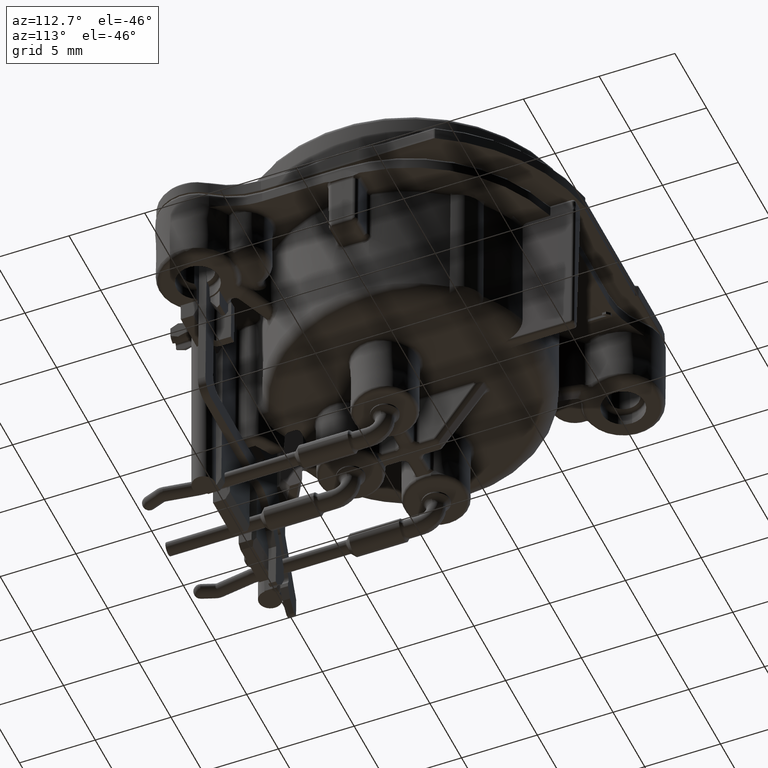
[diagram: clean part render]
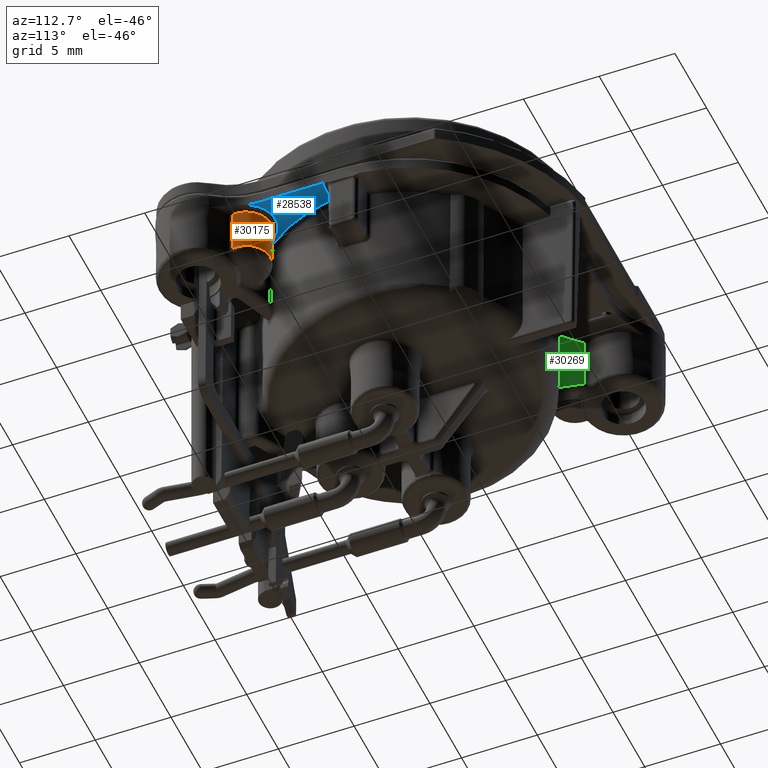
[diagram: same view with three faces highlighted in distinct colors, each labeled with its STEP entity id]
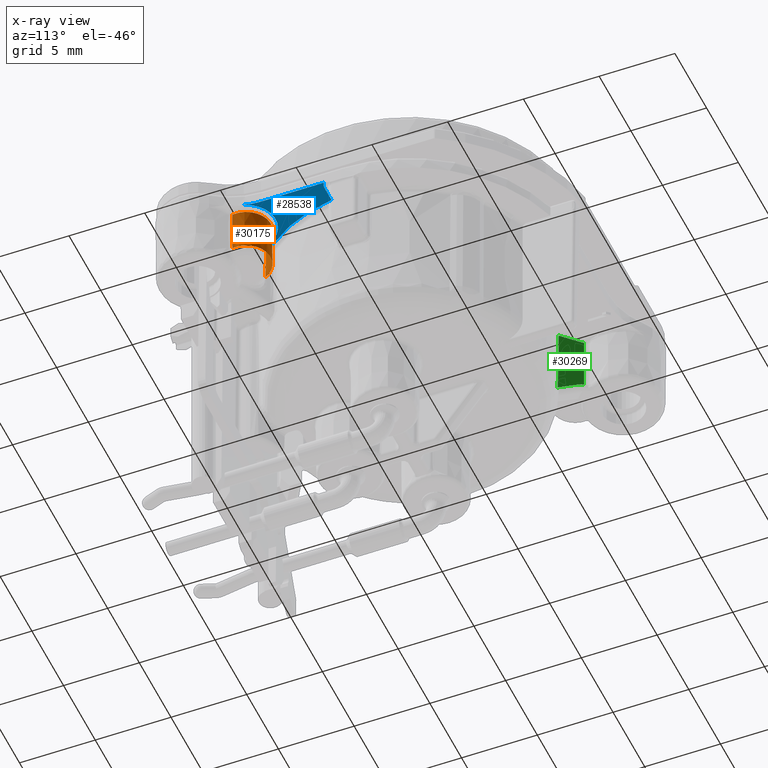
[diagram: x-ray of the same camera — body ghosted, the three highlighted faces saturated]
A machine part, auxiliary view with three faces highlighted in distinct colors.
The next image is the same camera in x-ray (body ghosted, the three faces saturated) — at least one of them is partly hidden behind the body in this view.
Their STEP definitions:

[orange] entity #30175 — the highlighted conical surface has half-angle 0.5 deg.
#4941=CARTESIAN_POINT('',(9.2E0,-7.E0,-1.297382058457E0));
#4942=DIRECTION('',(0.E0,0.E0,1.E0));
#4943=DIRECTION('',(9.902629051405E-1,-1.392098369464E-1,0.E0));
#4944=AXIS2_PLACEMENT_3D('',#4941,#4942,#4943);
#4946=CARTESIAN_POINT('',(7.721556796327E0,-6.307937083825E0,
-1.297382039366E0));
#4947=CARTESIAN_POINT('',(7.722603298882E0,-6.311950488734E0,
-1.600961282642E0));
#4948=CARTESIAN_POINT('',(7.724757557169E0,-6.320157020637E0,
-2.220952225498E0));
#4949=CARTESIAN_POINT('',(7.728102845009E0,-6.332746487465E0,
-3.169781385959E0));
#4950=CARTESIAN_POINT('',(7.730565044612E0,-6.341855013862E0,
-3.854204871482E0));
#4951=CARTESIAN_POINT('',(7.731839321282E0,-6.346544091006E0,
-4.206092356122E0));
#4953=CARTESIAN_POINT('',(9.2E0,-7.E0,-4.206108574849E0));
#4954=DIRECTION('',(0.E0,0.E0,-1.E0));
#4955=DIRECTION('',(-9.135943965522E-1,4.066267066836E-1,0.E0));
#4956=AXIS2_PLACEMENT_3D('',#4953,#4954,#4955);
#4958=CARTESIAN_POINT('',(1.081650990555E1,-7.227246807480E0,
-1.297382039347E0));
#4959=CARTESIAN_POINT('',(1.081364919131E1,-7.228527649517E0,
-1.601563728792E0));
#4960=CARTESIAN_POINT('',(1.080780529090E1,-7.231140372534E0,
-2.222359276565E0));
#4961=CARTESIAN_POINT('',(1.079885918444E1,-7.235130735333E0,
-3.171306264733E0));
#4962=CARTESIAN_POINT('',(1.079239583267E1,-7.238001083522E0,
-3.854858963895E0));
#4963=CARTESIAN_POINT('',(1.078907370298E1,-7.239475579124E0,
-4.206108541916E0));
#8927=CARTESIAN_POINT('',(7.731839321282E0,-6.346544091006E0,
-4.206092356122E0));
#8958=CARTESIAN_POINT('',(1.078907370298E1,-7.239475579124E0,
-4.206108541916E0));
#21730=CARTESIAN_POINT('',(1.081650990584E1,-7.227246804103E0,
-1.297382058457E0));
#21731=CARTESIAN_POINT('',(7.721556797725E0,-6.307937081397E0,
-1.297382058457E0));
#21732=VERTEX_POINT('',#21730);
#21733=VERTEX_POINT('',#21731);
#21964=VERTEX_POINT('',#8927);
#21976=VERTEX_POINT('',#8958);
#30161=CARTESIAN_POINT('',(9.2E0,-7.E0,-2.751746851800E0));
#30162=DIRECTION('',(0.E0,0.E0,1.E0));
#30163=DIRECTION('',(1.E0,0.E0,0.E0));
#30164=AXIS2_PLACEMENT_3D('',#30161,#30162,#30163);
#30165=CONICAL_SURFACE('',#30164,1.619712736821E0,5.E-1);
#30166=ORIENTED_EDGE('',*,*,#30151,.T.);
#30168=ORIENTED_EDGE('',*,*,#30167,.T.);
#30170=ORIENTED_EDGE('',*,*,#30169,.T.);
#30172=ORIENTED_EDGE('',*,*,#30171,.F.);
#30173=EDGE_LOOP('',(#30166,#30168,#30170,#30172));
#30174=FACE_OUTER_BOUND('',#30173,.F.);
#30175=ADVANCED_FACE('',(#30174),#30165,.T.);
#4945=CIRCLE('',#4944,1.632404786092E0);
#4952=B_SPLINE_CURVE_WITH_KNOTS('',3,(#4946,#4947,#4948,#4949,#4950,#4951),
.UNSPECIFIED.,.F.,.F.,(4,1,1,4),(0.E0,3.333333333333E-1,6.666666666667E-1,1.E0),
.UNSPECIFIED.);
#4957=CIRCLE('',#4956,1.607020714344E0);
#4964=B_SPLINE_CURVE_WITH_KNOTS('',3,(#4958,#4959,#4960,#4961,#4962,#4963),
.UNSPECIFIED.,.F.,.F.,(4,1,1,4),(0.E0,3.333333333333E-1,6.666666666667E-1,1.E0),
.UNSPECIFIED.);
#30151=EDGE_CURVE('',#21732,#21733,#4945,.T.);
#30167=EDGE_CURVE('',#21733,#21964,#4952,.T.);
#30169=EDGE_CURVE('',#21964,#21976,#4957,.T.);
#30171=EDGE_CURVE('',#21732,#21976,#4964,.T.);

[blue] entity #28538 — the highlighted planar face has unit normal (0, 0, -1).
#3322=CARTESIAN_POINT('',(9.2E0,-7.E0,-1.E0));
#3323=DIRECTION('',(0.E0,0.E0,1.E0));
#3324=DIRECTION('',(9.519259096566E-1,3.063283573626E-1,0.E0));
#3325=AXIS2_PLACEMENT_3D('',#3322,#3323,#3324);
#3327=CARTESIAN_POINT('',(1.59E1,-5.235238484124E0,-1.E0));
#3328=DIRECTION('',(0.E0,0.E0,1.E0));
#3329=DIRECTION('',(-1.E0,0.E0,0.E0));
#3330=AXIS2_PLACEMENT_3D('',#3327,#3328,#3329);
#3332=DIRECTION('',(6.983708814763E-6,-9.999999999756E-1,3.163963063708E-7));
#3333=VECTOR('',#3332,4.073512020291E0);
#3334=CARTESIAN_POINT('',(1.089997155178E1,-1.161726463933E0,
-1.000001288844E0));
#3335=LINE('',#3334,#3333);
#3336=CARTESIAN_POINT('',(1.052000000059E1,-1.297393363152E0,
-1.000001544859E0));
#3337=CARTESIAN_POINT('',(1.056671540122E1,-1.297408715291E0,
-9.999925854064E-1));
#3338=CARTESIAN_POINT('',(1.065720045394E1,-1.286849882723E0,
-1.000003043109E0));
#3339=CARTESIAN_POINT('',(1.078780646390E1,-1.240070886228E0,
-1.000000471008E0));
#3340=CARTESIAN_POINT('',(1.086403904062E1,-1.191128362822E0,
-9.999968722428E-1));
#3341=CARTESIAN_POINT('',(1.089997155178E1,-1.161726463933E0,
-1.000001288844E0));
#3343=DIRECTION('',(9.999999999991E-1,2.285176333701E-11,-1.334353007812E-6));
#3344=VECTOR('',#3343,1.157759089802E0);
#3345=CARTESIAN_POINT('',(9.362240910792E0,-1.297393363178E0,-1.E0));
#3346=LINE('',#3345,#3344);
#3347=CARTESIAN_POINT('',(0.E0,0.E0,-1.000000000004E0));
#3348=DIRECTION('',(0.E0,0.E0,1.E0));
#3349=DIRECTION('',(7.770771924413E-1,-6.294053042258E-1,0.E0));
#3350=AXIS2_PLACEMENT_3D('',#3347,#3348,#3349);
#3352=CARTESIAN_POINT('',(7.351705535863E0,-6.082599670873E0,
-1.000000000012E0));
#3353=CARTESIAN_POINT('',(7.344623420706E0,-6.075522837312E0,
-1.000000000012E0));
#3354=CARTESIAN_POINT('',(7.333138117949E0,-6.059988567502E0,
-9.999999999946E-1));
#3355=CARTESIAN_POINT('',(7.322951618224E0,-6.031904571272E0,
-1.000000000001E0));
#3356=CARTESIAN_POINT('',(7.321407958961E0,-6.002338475986E0,
-1.000000000002E0));
#3357=CARTESIAN_POINT('',(7.328619683468E0,-5.973340230984E0,
-9.999999999929E-1));
#3358=CARTESIAN_POINT('',(7.338414601059E0,-5.956719757381E0,
-1.000000000016E0));
#3359=CARTESIAN_POINT('',(7.344706728468E0,-5.948955158957E0,
-1.000000000016E0));
#3361=DIRECTION('',(-7.071067810203E-1,7.071067813528E-1,-8.664781993706E-11));
#3362=VECTOR('',#3361,1.388140430183E-1);
#3363=CARTESIAN_POINT('',(7.449861886982E0,-6.180756022038E0,-1.E0));
#3364=LINE('',#3363,#3362);
#5107=CARTESIAN_POINT('',(1.089997155178E1,-1.161726463933E0,
-1.000001288844E0));
#21644=VERTEX_POINT('',#5107);
#21683=CARTESIAN_POINT('',(1.09E1,-5.235238484124E0,-1.E0));
#21684=VERTEX_POINT('',#21683);
#21738=CARTESIAN_POINT('',(7.449861886982E0,-6.180756022038E0,-1.E0));
#21739=CARTESIAN_POINT('',(7.351705535863E0,-6.082599670873E0,
-1.000000000012E0));
#21740=VERTEX_POINT('',#21738);
#21741=VERTEX_POINT('',#21739);
#21746=CARTESIAN_POINT('',(7.344705559475E0,-5.948954212113E0,
-1.000000000004E0));
#21747=CARTESIAN_POINT('',(9.362239420683E0,-1.297393156683E0,
-1.000000000004E0));
#21748=VERTEX_POINT('',#21746);
#21749=VERTEX_POINT('',#21747);
#21754=CARTESIAN_POINT('',(1.052000000059E1,-1.297393363152E0,
-1.000001544859E0));
#21755=VERTEX_POINT('',#21754);
#21766=CARTESIAN_POINT('',(1.103949531006E1,-6.408053115279E0,-1.E0));
#21767=VERTEX_POINT('',#21766);
#28515=CARTESIAN_POINT('',(0.E0,0.E0,-1.E0));
#28516=DIRECTION('',(0.E0,0.E0,-1.E0));
#28517=DIRECTION('',(0.E0,-1.E0,0.E0));
#28518=AXIS2_PLACEMENT_3D('',#28515,#28516,#28517);
#28519=PLANE('',#28518);
#28521=ORIENTED_EDGE('',*,*,#28520,.F.);
#28523=ORIENTED_EDGE('',*,*,#28522,.F.);
#28525=ORIENTED_EDGE('',*,*,#28524,.F.);
#28527=ORIENTED_EDGE('',*,*,#28526,.F.);
#28529=ORIENTED_EDGE('',*,*,#28528,.F.);
#28531=ORIENTED_EDGE('',*,*,#28530,.F.);
#28533=ORIENTED_EDGE('',*,*,#28532,.F.);
#28535=ORIENTED_EDGE('',*,*,#28534,.F.);
#28536=EDGE_LOOP('',(#28521,#28523,#28525,#28527,#28529,#28531,#28533,#28535));
#28537=FACE_OUTER_BOUND('',#28536,.F.);
#28538=ADVANCED_FACE('',(#28537),#28519,.T.);
#3326=CIRCLE('',#3325,1.932393363178E0);
#3331=CIRCLE('',#3330,5.E0);
#3342=B_SPLINE_CURVE_WITH_KNOTS('',3,(#3336,#3337,#3338,#3339,#3340,#3341),
.UNSPECIFIED.,.F.,.F.,(4,1,1,4),(0.E0,3.333333333333E-1,6.666666666667E-1,1.E0),
.UNSPECIFIED.);
#3351=CIRCLE('',#3350,9.451706511165E0);
#3360=B_SPLINE_CURVE_WITH_KNOTS('',3,(#3352,#3353,#3354,#3355,#3356,#3357,#3358,
#3359),.UNSPECIFIED.,.F.,.F.,(4,1,1,1,1,4),(0.E0,2.E-1,4.E-1,6.E-1,8.E-1,1.E0),
.UNSPECIFIED.);
#28520=EDGE_CURVE('',#21767,#21740,#3326,.T.);
#28522=EDGE_CURVE('',#21684,#21767,#3331,.T.);
#28524=EDGE_CURVE('',#21644,#21684,#3335,.T.);
#28526=EDGE_CURVE('',#21755,#21644,#3342,.T.);
#28528=EDGE_CURVE('',#21749,#21755,#3346,.T.);
#28530=EDGE_CURVE('',#21748,#21749,#3351,.T.);
#28532=EDGE_CURVE('',#21741,#21748,#3360,.T.);
#28534=EDGE_CURVE('',#21740,#21741,#3364,.T.);

[green] entity #30269 — the highlighted planar face has unit normal (0.7071, 0.7071, -0.0087).
#3098=CARTESIAN_POINT('',(-7.516987031548E0,8.317253587588E0,
-4.910175671699E0));
#5015=DIRECTION('',(-7.071062922658E-1,7.071072701069E-1,-6.031890811569E-9));
#5016=VECTOR('',#5015,1.674645299080E0);
#5017=CARTESIAN_POINT('',(-6.294720805303E0,7.139584399698E0,
-1.297382074172E0));
#5018=LINE('',#5017,#5016);
#5019=CARTESIAN_POINT('',(-7.478873033595E0,8.323738265527E0,
-1.297382084273E0));
#5020=CARTESIAN_POINT('',(-7.483110186675E0,8.323012627839E0,
-1.699499211267E0));
#5021=CARTESIAN_POINT('',(-7.491586793577E0,8.321558230743E0,
-2.503269222722E0));
#5022=CARTESIAN_POINT('',(-7.504307530161E0,8.319422741328E0,
-3.707542152763E0));
#5023=CARTESIAN_POINT('',(-7.512750551113E0,8.317962741862E0,
-4.509448638095E0));
#5024=CARTESIAN_POINT('',(-7.516987031548E0,8.317253587588E0,
-4.910175671699E0));
#5026=CARTESIAN_POINT('',(-7.276898420719E0,8.075761806545E0,
-5.024067743956E0));
#5027=CARTESIAN_POINT('',(-7.314256077236E0,8.113506394943E0,
-4.993393948605E0));
#5028=CARTESIAN_POINT('',(-7.391790612708E0,8.191642090650E0,
-4.944175709217E0));
#5029=CARTESIAN_POINT('',(-7.474392036332E0,8.274561602050E0,
-4.917571155328E0));
#5030=CARTESIAN_POINT('',(-7.516987031548E0,8.317253587588E0,
-4.910175671699E0));
#5032=DIRECTION('',(-6.092805225507E-1,6.154512134544E-1,4.999970486892E-1));
#5033=VECTOR('',#5032,1.625371950541E0);
#5034=CARTESIAN_POINT('',(-6.286590949354E0,7.075424667270E0,
-5.836748922249E0));
#5035=LINE('',#5034,#5033);
#5036=CARTESIAN_POINT('',(-6.286590949354E0,7.075424667270E0,
-5.836748922249E0));
#5037=CARTESIAN_POINT('',(-6.287523444609E0,7.082746580728E0,
-5.319037293296E0));
#5038=CARTESIAN_POINT('',(-6.289367314023E0,7.097252470823E0,
-4.293251165845E0));
#5039=CARTESIAN_POINT('',(-6.291966362086E0,7.117740572023E0,
-2.843445594388E0));
#5040=CARTESIAN_POINT('',(-6.293796286463E0,7.132256915921E0,
-1.816191346363E0));
#5041=CARTESIAN_POINT('',(-6.294720805303E0,7.139584399698E0,
-1.297382074172E0));
#19807=CARTESIAN_POINT('',(-6.286590949354E0,7.075424667270E0,
-5.836748922249E0));
#21844=CARTESIAN_POINT('',(-6.294720805303E0,7.139584399698E0,
-1.297382074172E0));
#21845=CARTESIAN_POINT('',(-7.478873033595E0,8.323738265527E0,
-1.297382084273E0));
#21846=VERTEX_POINT('',#21844);
#21847=VERTEX_POINT('',#21845);
#21900=VERTEX_POINT('',#19807);
#21909=CARTESIAN_POINT('',(-7.276898420719E0,8.075761806545E0,
-5.024067743956E0));
#21910=VERTEX_POINT('',#21909);
#21935=VERTEX_POINT('',#3098);
#30253=CARTESIAN_POINT('',(-7.686881549288E0,8.535409686712E0,-1.E0));
#30254=DIRECTION('',(7.070798567270E-1,7.070798567270E-1,-8.726535498374E-3));
#30255=DIRECTION('',(7.071067811865E-1,-7.071067811865E-1,0.E0));
#30256=AXIS2_PLACEMENT_3D('',#30253,#30254,#30255);
#30257=PLANE('',#30256);
#30259=ORIENTED_EDGE('',*,*,#30258,.T.);
#30260=ORIENTED_EDGE('',*,*,#28089,.T.);
#30262=ORIENTED_EDGE('',*,*,#30261,.F.);
#30264=ORIENTED_EDGE('',*,*,#30263,.F.);
#30266=ORIENTED_EDGE('',*,*,#30265,.T.);
#30267=EDGE_LOOP('',(#30259,#30260,#30262,#30264,#30266));
#30268=FACE_OUTER_BOUND('',#30267,.F.);
#30269=ADVANCED_FACE('',(#30268),#30257,.T.);
#5025=B_SPLINE_CURVE_WITH_KNOTS('',3,(#5019,#5020,#5021,#5022,#5023,#5024),
.UNSPECIFIED.,.F.,.F.,(4,1,1,4),(0.E0,3.333333333333E-1,6.666666666667E-1,1.E0),
.UNSPECIFIED.);
#5031=B_SPLINE_CURVE_WITH_KNOTS('',3,(#5026,#5027,#5028,#5029,#5030),
.UNSPECIFIED.,.F.,.F.,(4,1,4),(0.E0,5.E-1,1.E0),.UNSPECIFIED.);
#5042=B_SPLINE_CURVE_WITH_KNOTS('',3,(#5036,#5037,#5038,#5039,#5040,#5041),
.UNSPECIFIED.,.F.,.F.,(4,1,1,4),(0.E0,3.333333333333E-1,6.666666666667E-1,1.E0),
.UNSPECIFIED.);
#28089=EDGE_CURVE('',#21847,#21935,#5025,.T.);
#30258=EDGE_CURVE('',#21846,#21847,#5018,.T.);
#30261=EDGE_CURVE('',#21910,#21935,#5031,.T.);
#30263=EDGE_CURVE('',#21900,#21910,#5035,.T.);
#30265=EDGE_CURVE('',#21900,#21846,#5042,.T.);